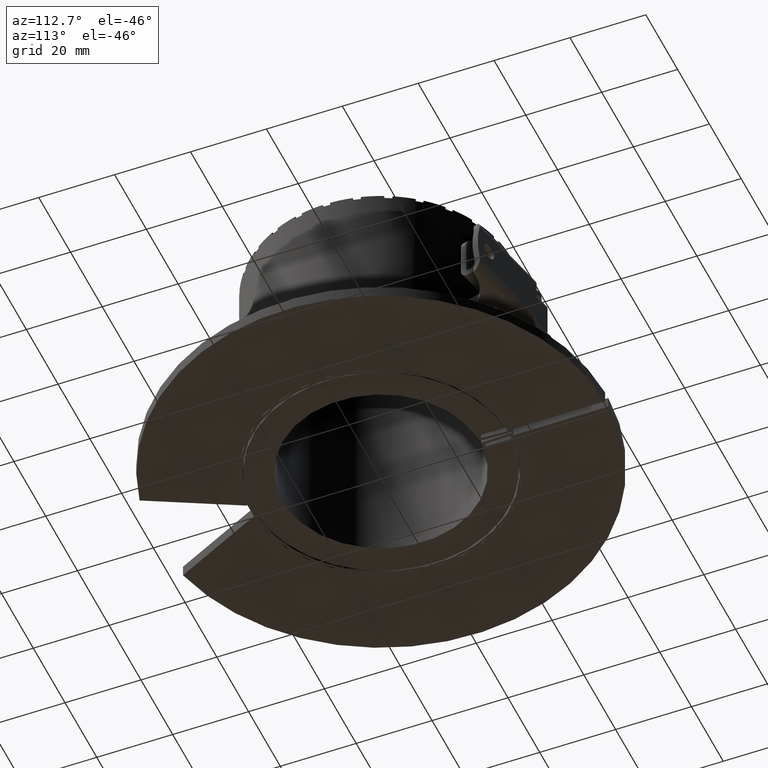
[diagram: clean part render]
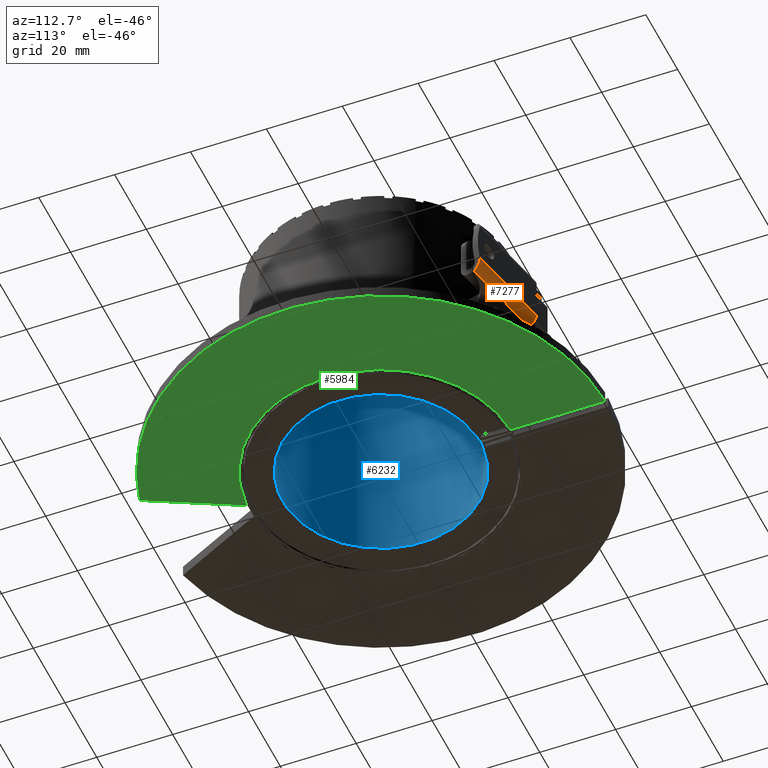
[diagram: same view with three faces highlighted in distinct colors, each labeled with its STEP entity id]
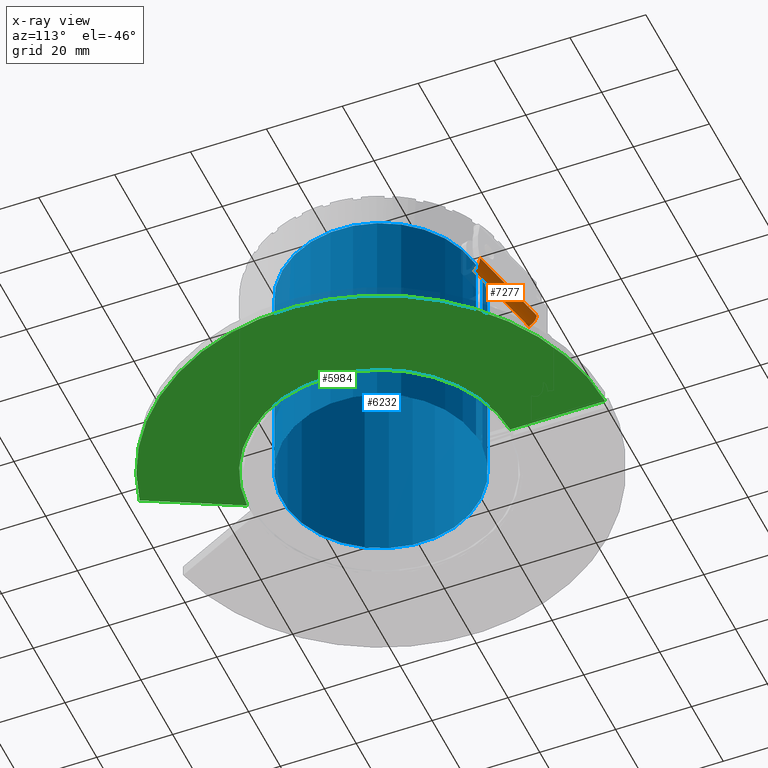
[diagram: x-ray of the same camera — body ghosted, the three highlighted faces saturated]
A machine part, auxiliary view with three faces highlighted in distinct colors.
The next image is the same camera in x-ray (body ghosted, the three faces saturated) — at least one of them is partly hidden behind the body in this view.
Their STEP definitions:

[orange] entity #7277 — the highlighted cylindrical surface (edge-blend (fillet) strip) has radius 2.4 mm, axis along (-0.9756, 0.2195, -0).
#6969=CARTESIAN_POINT('',(11.228121537851477,43.906175696151415,-7.850000002145956));
#6970=VERTEX_POINT('',#6969);
#6977=CARTESIAN_POINT('',(34.103157980597359,38.759346682773057,-7.850000001192159));
#6978=VERTEX_POINT('',#6977);
#6979=CARTESIAN_POINT('',(34.103157980597366,38.759346682773057,-7.849999999999984));
#6980=DIRECTION('',(-0.975610251018905,0.219509995459954,-2.310706E-015));
#6981=VECTOR('',#6980,23.446900459333762);
#6982=LINE('',#6979,#6981);
#6983=EDGE_CURVE('',#6978,#6970,#6982,.T.);
#7164=CARTESIAN_POINT('',(11.825681661090908,44.284225823930896,-7.797338922761683));
#7165=VERTEX_POINT('',#7164);
#7172=CARTESIAN_POINT('',(11.228121537851475,43.906175696151415,-7.850000003814999));
#7173=CARTESIAN_POINT('',(11.289389249055644,43.892390606261038,-7.850000003814999));
#7174=CARTESIAN_POINT('',(11.35749328969699,43.889936428068026,-7.850102881000622));
#7175=CARTESIAN_POINT('',(11.488887947664875,43.912689724722895,-7.849293025841857));
#7176=CARTESIAN_POINT('',(11.552177515327982,43.937898049036441,-7.848239939105177));
#7177=CARTESIAN_POINT('',(11.658696753732691,44.005288107582473,-7.842791218288023));
#7178=CARTESIAN_POINT('',(11.708785560705968,44.052102745423213,-7.83797589483318));
#7179=CARTESIAN_POINT('',(11.785469415147469,44.161355084144432,-7.821921083874197));
#7180=CARTESIAN_POINT('',(11.81207760191289,44.223762702141229,-7.810539970934585));
#7181=CARTESIAN_POINT('',(11.825681661090908,44.284225823930896,-7.797338922761686));
#7182=B_SPLINE_CURVE_WITH_KNOTS('',3,(#7172,#7173,#7174,#7175,#7176,#7177,#7178,#7179,#7180,#7181),.UNSPECIFIED.,.F.,.U.,(4,2,2,2,4),(0.152964844434264,0.171804656072215,0.190644467710166,0.20965397710936,0.228663486508553),.UNSPECIFIED.);
#7183=EDGE_CURVE('',#6970,#7165,#7182,.T.);
#7226=CARTESIAN_POINT('',(50.296632262725979,35.11585332829204,-5.449999999999946));
#7227=DIRECTION('',(-0.975610251018905,0.219509995459954,-2.302224E-015));
#7228=DIRECTION('',(0.0,0.0,1.0));
#7229=AXIS2_PLACEMENT_3D('',#7226,#7227,#7228);
#7230=CYLINDRICAL_SURFACE('',#7229,2.400000003814962);
#7231=ORIENTED_EDGE('',*,*,#6983,.T.);
#7232=ORIENTED_EDGE('',*,*,#7183,.T.);
#7233=CARTESIAN_POINT('',(12.242750652726508,46.1378853020299,-5.450000000000035));
#7234=VERTEX_POINT('',#7233);
#7235=CARTESIAN_POINT('',(11.715926663360925,43.79642069842145,-5.450000000000035));
#7236=DIRECTION('',(-0.975610251018905,0.219509995459954,0.0));
#7237=DIRECTION('',(0.0,0.0,1.0));
#7238=AXIS2_PLACEMENT_3D('',#7235,#7236,#7237);
#7239=CIRCLE('',#7238,2.400000003814962);
#7240=EDGE_CURVE('',#7234,#7165,#7239,.T.);
#7241=ORIENTED_EDGE('',*,*,#7240,.F.);
#7242=CARTESIAN_POINT('',(35.561376727873899,40.89124967262228,-5.449999999999977));
#7243=VERTEX_POINT('',#7242);
#7244=CARTESIAN_POINT('',(35.561376727507515,40.891249670993943,-5.449999999999977));
#7245=DIRECTION('',(-0.975610251018905,0.219509995459954,-2.303909E-015));
#7246=VECTOR('',#7245,23.90157960178183);
#7247=LINE('',#7244,#7246);
#7248=EDGE_CURVE('',#7243,#7234,#7247,.T.);
#7249=ORIENTED_EDGE('',*,*,#7248,.F.);
#7250=CARTESIAN_POINT('',(34.165854059844527,38.861958140192115,-7.847297096064891));
#7251=VERTEX_POINT('',#7250);
#7252=CARTESIAN_POINT('',(35.561376728344953,40.891249674715851,-5.449999999999977));
#7253=CARTESIAN_POINT('',(35.512051370137371,40.902347763470964,-5.695260380557867));
#7254=CARTESIAN_POINT('',(35.448116917998263,40.87787432484415,-5.956102197840658));
#7255=CARTESIAN_POINT('',(35.366936376779606,40.806109257010696,-6.216659188227496));
#7256=CARTESIAN_POINT('',(35.285755835560963,40.734344189177264,-6.477216178614329));
#7257=CARTESIAN_POINT('',(35.187242242934218,40.6149009888302,-6.737412752926919));
#7258=CARTESIAN_POINT('',(35.070331600167876,40.443050722932284,-6.972887307099938));
#7259=CARTESIAN_POINT('',(34.953420957401548,40.271200457034396,-7.208361861272956));
#7260=CARTESIAN_POINT('',(34.818023098291064,40.046542382679732,-7.418761366500912));
#7261=CARTESIAN_POINT('',(34.666006568629996,39.777381235271697,-7.574348469619099));
#7262=CARTESIAN_POINT('',(34.51399003896892,39.508220087863684,-7.729935572737285));
#7263=CARTESIAN_POINT('',(34.345305339053652,39.194335866403406,-7.830023190540225));
#7264=CARTESIAN_POINT('',(34.16585405984452,38.861958140192115,-7.847297096064891));
#7265=B_SPLINE_CURVE_WITH_KNOTS('',3,(#7252,#7253,#7254,#7255,#7256,#7257,#7258,#7259,#7260,#7261,#7262,#7263,#7264),.UNSPECIFIED.,.F.,.U.,(4,3,3,3,4),(0.0,0.25,0.5,0.75,1.0),.UNSPECIFIED.);
#7266=EDGE_CURVE('',#7243,#7251,#7265,.T.);
#7267=ORIENTED_EDGE('',*,*,#7266,.T.);
#7268=CARTESIAN_POINT('',(34.120013307568286,38.746239676697364,-5.067154845950088));
#7269=DIRECTION('',(-0.853386781223104,0.52122248581612,0.007623772906876));
#7270=DIRECTION('',(0.005208937818895,0.023151082535816,-0.999718407524948));
#7271=AXIS2_PLACEMENT_3D('',#7268,#7269,#7270);
#7272=ELLIPSE('',#7271,2.78295299456253,2.729044327309273);
#7273=EDGE_CURVE('',#7251,#6978,#7272,.T.);
#7274=ORIENTED_EDGE('',*,*,#7273,.T.);
#7275=EDGE_LOOP('',(#7231,#7232,#7241,#7249,#7267,#7274));
#7276=FACE_OUTER_BOUND('',#7275,.T.);
#7277=ADVANCED_FACE('',(#7276),#7230,.T.);

[blue] entity #6232 — the highlighted cylindrical surface (partial cylindrical patch) has radius 26 mm, axis along (0, 0, 1).
#6191=CARTESIAN_POINT('',(0.0,0.0,-29.949999999999996));
#6192=DIRECTION('',(0.0,0.0,1.0));
#6193=DIRECTION('',(0.076923076923077,-0.997037030524286,0.0));
#6194=AXIS2_PLACEMENT_3D('',#6191,#6192,#6193);
#6195=CYLINDRICAL_SURFACE('',#6194,25.999999999999996);
#6196=CARTESIAN_POINT('',(-2.000000000000003,25.922962793631442,30.050000000000004));
#6197=VERTEX_POINT('',#6196);
#6198=CARTESIAN_POINT('',(1.999999999999997,25.922962793631442,30.050000000000004));
#6199=VERTEX_POINT('',#6198);
#6200=CARTESIAN_POINT('',(0.0,0.0,30.050000000000004));
#6201=DIRECTION('',(0.0,0.0,1.0));
#6202=DIRECTION('',(0.076923076923077,-0.997037030524286,0.0));
#6203=AXIS2_PLACEMENT_3D('',#6200,#6201,#6202);
#6204=CIRCLE('',#6203,25.999999999999996);
#6205=EDGE_CURVE('',#6197,#6199,#6204,.T.);
#6206=ORIENTED_EDGE('',*,*,#6205,.T.);
#6207=CARTESIAN_POINT('',(1.999999999999997,25.922962793631442,-29.949999999999996));
#6208=VERTEX_POINT('',#6207);
#6209=CARTESIAN_POINT('',(1.999999999999997,25.922962793631442,-29.949999999999996));
#6210=DIRECTION('',(0.0,0.0,1.0));
#6211=VECTOR('',#6210,60.0);
#6212=LINE('',#6209,#6211);
#6213=EDGE_CURVE('',#6208,#6199,#6212,.T.);
#6214=ORIENTED_EDGE('',*,*,#6213,.F.);
#6215=CARTESIAN_POINT('',(-2.000000000000003,25.922962793631442,-29.949999999999996));
#6216=VERTEX_POINT('',#6215);
#6217=CARTESIAN_POINT('',(0.0,0.0,-29.949999999999996));
#6218=DIRECTION('',(0.0,0.0,-1.0));
#6219=DIRECTION('',(0.076923076923077,-0.997037030524286,0.0));
#6220=AXIS2_PLACEMENT_3D('',#6217,#6218,#6219);
#6221=CIRCLE('',#6220,25.999999999999996);
#6222=EDGE_CURVE('',#6208,#6216,#6221,.T.);
#6223=ORIENTED_EDGE('',*,*,#6222,.T.);
#6224=CARTESIAN_POINT('',(-2.000000000000003,25.922962793631442,-29.949999999999996));
#6225=DIRECTION('',(0.0,0.0,1.0));
#6226=VECTOR('',#6225,60.0);
#6227=LINE('',#6224,#6226);
#6228=EDGE_CURVE('',#6216,#6197,#6227,.T.);
#6229=ORIENTED_EDGE('',*,*,#6228,.T.);
#6230=EDGE_LOOP('',(#6206,#6214,#6223,#6229));
#6231=FACE_OUTER_BOUND('',#6230,.T.);
#6232=ADVANCED_FACE('',(#6231),#6195,.F.);

[green] entity #5984 — the highlighted planar face has unit normal (0, 0, 1).
#5848=CARTESIAN_POINT('',(2.000000000000022,-34.44198019858905,-30.049999999999994));
#5849=VERTEX_POINT('',#5848);
#5856=CARTESIAN_POINT('',(13.696764678795221,-57.902060734776164,-30.049999999999994));
#5857=VERTEX_POINT('',#5856);
#5858=CARTESIAN_POINT('',(13.696764678795221,-57.902060734776164,-30.049999999999994));
#5859=DIRECTION('',(-0.446197813109809,0.894934361602025,0.0));
#5860=VECTOR('',#5859,26.214303017923196);
#5861=LINE('',#5858,#5860);
#5862=EDGE_CURVE('',#5857,#5849,#5861,.T.);
#5887=CARTESIAN_POINT('',(0.999999999999978,34.485504201040762,-30.049999999999994));
#5888=VERTEX_POINT('',#5887);
#5895=CARTESIAN_POINT('',(-2.455325E-032,7.771043E-033,-30.049999999999994));
#5896=DIRECTION('',(-2.368348E-020,4.078529E-019,1.0));
#5897=DIRECTION('',(0.057971014492754,-0.99831826662577,4.085399E-019));
#5898=AXIS2_PLACEMENT_3D('',#5895,#5896,#5897);
#5899=CIRCLE('',#5898,34.500000000000007);
#5900=EDGE_CURVE('',#5849,#5888,#5899,.T.);
#5919=CARTESIAN_POINT('',(0.999999999999962,59.491596045155823,-30.049999999999994));
#5920=VERTEX_POINT('',#5919);
#5927=CARTESIAN_POINT('',(0.999999999999978,34.485504201040762,-30.049999999999994));
#5928=DIRECTION('',(0.0,1.0,0.0));
#5929=VECTOR('',#5928,25.006091844115055);
#5930=LINE('',#5927,#5929);
#5931=EDGE_CURVE('',#5888,#5920,#5930,.T.);
#5950=CARTESIAN_POINT('',(-2.455325E-032,7.771043E-033,-30.049999999999994));
#5951=DIRECTION('',(3.734442E-019,-1.578708E-018,-1.0));
#5952=DIRECTION('',(-0.230197725694037,0.973143877895398,-1.622276E-018));
#5953=AXIS2_PLACEMENT_3D('',#5950,#5951,#5952);
#5954=CIRCLE('',#5953,59.499999999999993);
#5955=EDGE_CURVE('',#5920,#5857,#5954,.T.);
#5973=CARTESIAN_POINT('',(26.803917018630315,2.100282554278623,-30.049999999999994));
#5974=DIRECTION('',(0.0,0.0,1.0));
#5975=DIRECTION('',(1.0,0.0,0.0));
#5976=AXIS2_PLACEMENT_3D('',#5973,#5974,#5975);
#5977=PLANE('',#5976);
#5978=ORIENTED_EDGE('',*,*,#5955,.T.);
#5979=ORIENTED_EDGE('',*,*,#5862,.T.);
#5980=ORIENTED_EDGE('',*,*,#5900,.T.);
#5981=ORIENTED_EDGE('',*,*,#5931,.T.);
#5982=EDGE_LOOP('',(#5978,#5979,#5980,#5981));
#5983=FACE_OUTER_BOUND('',#5982,.T.);
#5984=ADVANCED_FACE('',(#5983),#5977,.F.);